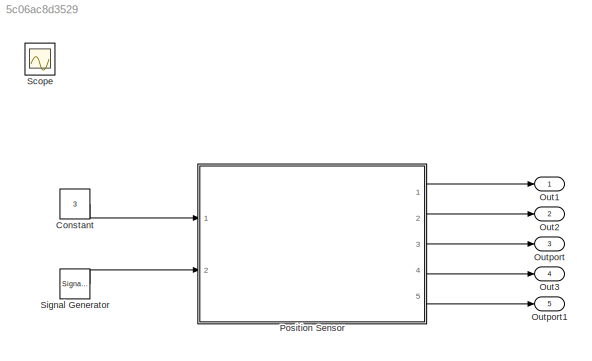
MODEL slx_5c06ac8d3529
KIND model
CONFIG AbsTol = auto
CONFIG EnableMultiTasking = on
CONFIG FixedStep = auto
CONFIG MaxStep = auto
CONFIG MinStep = auto
CONFIG RelTol = 1e-3
CONFIG SampleTimeConstraint = Unconstrained
CONFIG Solver = FixedStepAuto
CONFIG SolverName = FixedStepAuto
CONFIG StartTime = 0.0
CONFIG StopTime = 17
BLOCK [Constant] Constant
  Value = 3
BLOCK [Outport] Out1
  IconDisplay = Port number
BLOCK [Outport] Out2
  IconDisplay = Port number
  Port = 2
BLOCK [Outport] Out3
  IconDisplay = Port number
  Port = 4
BLOCK [Outport] Outport
  IconDisplay = Port number
  Port = 3
BLOCK [Outport] Outport1
  IconDisplay = Port number
  Port = 5
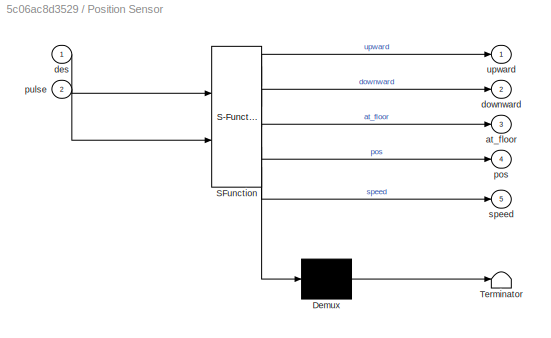
BLOCK [SubSystem] Position Sensor 
  ErrorFcn = Stateflow.Translate.translate
  PermitHierarchicalResolution = ExplicitOnly
  Ports = [2, 5]
  RequestExecContextInheritance = off
  SFBlockType = Chart
  TreatAsAtomicUnit = on
BLOCK [Demux] Position Sensor / Demux 
  Outputs = 1
  Ports = [1, 1]
BLOCK [S-Function] Position Sensor / SFunction 
  EnableBusSupport = on
  FunctionName = sf_sfun
  PortCounts = [2 6]
  Ports = [2, 6]
  SFcnIsStateOwnerBlock = off
  SFunctionDeploymentMode = off
  Tag = Stateflow S-Function position_signalGenerator 3
BLOCK [Terminator] Position Sensor / Terminator 
BLOCK [Outport] Position Sensor /at_floor
  IconDisplay = Port number
  Port = 3
BLOCK [Inport] Position Sensor /des
  IconDisplay = Port number
BLOCK [Outport] Position Sensor /downward
  IconDisplay = Port number
  Port = 2
BLOCK [Outport] Position Sensor /pos
  IconDisplay = Port number
  Port = 4
BLOCK [Inport] Position Sensor /pulse
  IconDisplay = Port number
  Port = 2
BLOCK [Outport] Position Sensor /speed
  IconDisplay = Port number
  Port = 5
BLOCK [Outport] Position Sensor /upward
  IconDisplay = Port number
BLOCK [Scope] Scope
  Floating = off
  IOType = viewer
  NumInputPorts = 1
  Ports = []
  ScopeSpecificationString = Simulink.scopes.TimeScopeBlockCfg('CurrentConfiguration', extmgr.ConfigurationSet(extmgr.Configuration('Core','General UI',true),extmgr.Configuration('Core','Source UI',true),extmgr.Configuration('Sources','WiredSimulink',true),extmgr.Configuration('Visuals','Time Domain',true,'SerializedDisplays',{struct('MinYLimReal','-6.25','MaxYLimReal','56.25','YLabelReal','','MinYLimMag','0.00000','MaxYLimMa...<+1358ch>
BLOCK [SignalGenerator] Signal Generator
  Frequency = 50
  Ports = [0, 1]
  WaveForm = square
LINE Constant:1 -> Position Sensor :1
LINE Position Sensor :1 -> Out1:1
LINE Position Sensor :2 -> Out2:1
LINE Position Sensor :3 -> Outport:1
LINE Position Sensor :4 -> Out3:1
LINE Position Sensor :5 -> Outport1:1
LINE Signal Generator:1 -> Position Sensor :2
CHART Position Sensor
 states=12 transitions=18
  STATE_LABEL 'pos_detection'
  STATE_LABEL 'speed_cal'
  STATE_LABEL 'speed_at_1\nentry:\nspeed = abs(pos - last_counter);\nlast_counter = pos;'
  STATE_LABEL '[after(1,sec)]'
  STATE_LABEL 'H'
  STATE_LABEL 'pos_cal'
  STATE_LABEL 'floor_3\nentry:\ncounter = 0;\nat_floor = 3;\npos = 800;\nduring:\nupward = 0;\ndownward = 0;'
  STATE_LABEL 'floor_1\nentry:\ncounter = 0;\nat_floor = 1;\npos = 0;\nduring:\nupward = 0;\ndownward = 0;\n'
  STATE_LABEL 'between_1_2\nentry:\nat_floor = -1;\npos = (upward)*(counter) + (downward)*(400 - counter)\nexit:\n'
  STATE_LABEL 'between_2_3\nentry:\nat_floor = -1;\npos = (upward)*(counter+400) + (downward)*(800 - counter)'
  STATE_LABEL 'read_pulse_2_3\nentry:\ncounter = counter+1\nlast = pulse;\n'
  STATE_LABEL 'read_pulse_1_2\nentry:\ncounter = counter+1\nlast = pulse'
  STATE_LABEL 'floor_2\nentry:\ncounter = 0;\nat_floor = 2;\npos = 400;\nduring:\nupward = 0;\ndownward = 0;'
  STATE_LABEL '[counter == 400 && upward == 1]'
  STATE_LABEL '[counter == 400 && downward == 1]'
  STATE_LABEL '[des == 2 || des == 1]{upward = 0 ; downward = 1}'
  STATE_LABEL '[des == 2 || des == 3]{upward = 1;downward = 0}'
  STATE_LABEL '[after(3,msec)&&last == pulse]'
  STATE_LABEL '[counter ~= 400]'
  STATE_LABEL '[des == 3]{upward = 1; downward = 0}'
  STATE_LABEL '[counter ~= 400]'
  STATE_LABEL '[after(3,msec)&& last ~= pulse]'
  STATE_LABEL '[after(3,msec)&& last ~= pulse]'
  STATE_LABEL '[des == 1]{upward = 0;downward =1}'
  STATE_LABEL '[counter == 400 && downward == 1]'
  STATE_LABEL '[counter == 400 && upward == 1]'
  STATE_LABEL 'H'
  STATE_LABEL 'speed_cal'
  STATE_LABEL 'speed_at_1\nentry:\nspeed = abs(pos - last_counter);\nlast_counter = pos;'
  STATE_LABEL '[after(1,sec)]'
  STATE_LABEL 'H'
  STATE_LABEL 'speed_at_1\nentry:\nspeed = abs(pos - last_counter);\nlast_counter = pos;'
  STATE_LABEL 'pos_cal'
  STATE_LABEL 'floor_3\nentry:\ncounter = 0;\nat_floor = 3;\npos = 800;\nduring:\nupward = 0;\ndownward = 0;'
  STATE_LABEL 'floor_1\nentry:\ncounter = 0;\nat_floor = 1;\npos = 0;\nduring:\nupward = 0;\ndownward = 0;\n'
  STATE_LABEL 'between_1_2\nentry:\nat_floor = -1;\npos = (upward)*(counter) + (downward)*(400 - counter)\nexit:\n'
  STATE_LABEL 'between_2_3\nentry:\nat_floor = -1;\npos = (upward)*(counter+400) + (downward)*(800 - counter)'
  STATE_LABEL 'read_pulse_2_3\nentry:\ncounter = counter+1\nlast = pulse;\n'
  STATE_LABEL 'read_pulse_1_2\nentry:\ncounter = counter+1\nlast = pulse'
  STATE_LABEL 'floor_2\nentry:\ncounter = 0;\nat_floor = 2;\npos = 400;\nduring:\nupward = 0;\ndownward = 0;'
